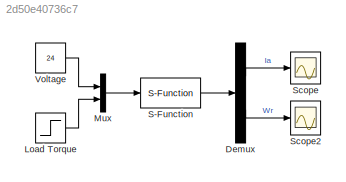
MODEL slx_2d50e40736c7
KIND model
CONFIG AbsTol = auto
CONFIG EnableMultiTasking = off
CONFIG FixedStep = auto
CONFIG MaxStep = auto
CONFIG MinStep = auto
CONFIG RelTol = 1e-3
CONFIG SampleTimeConstraint = Unconstrained
CONFIG SolverName = VariableStepAuto
CONFIG StartTime = 0.0
CONFIG StopTime = 30
BLOCK [Demux] Demux
  Outputs = 2
BLOCK [Step] Load Torque
  After = 0
  SampleTime = 0
  Time = 4
BLOCK [Mux] Mux
  DisplayOption = bar
  Inputs = 2
BLOCK [S-Function] S-Function
  EnableBusSupport = off
  FunctionName = DCMotor
  SFcnIsStateOwnerBlock = off
  SFunctionDeploymentMode = off
BLOCK [Scope] Scope
  Floating = off
  NumInputPorts = 1
  ScopeSpecificationString = Simulink.scopes.TimeScopeBlockCfg('CurrentConfiguration', extmgr.ConfigurationSet(extmgr.Configuration('Core','General UI',true,'FigureColor',[1 1 1]),extmgr.Configuration('Core','Source UI',true),extmgr.Configuration('Sources','WiredSimulink',true),extmgr.Configuration('Visuals','Time Domain',true,'SerializedDisplays',{struct('MinYLimReal','-0.26388','MaxYLimReal','2.37494','YLabelReal','','MinYL...<+1501ch>
BLOCK [Scope] Scope2
  Floating = off
  NumInputPorts = 1
  ScopeSpecificationString = Simulink.scopes.TimeScopeBlockCfg('CurrentConfiguration', extmgr.ConfigurationSet(extmgr.Configuration('Core','General UI',true,'FigureColor',[1 1 1]),extmgr.Configuration('Core','Source UI',true),extmgr.Configuration('Sources','WiredSimulink',true,'DataLoggingVariableName','ScopeData2'),extmgr.Configuration('Visuals','Time Domain',true,'SerializedDisplays',{struct('MinYLimReal','-216.4765','MaxYL...<+1558ch>
BLOCK [Constant] Voltage
  Value = 24
LINE Demux:1 -> Scope:1
LINE Demux:2 -> Scope2:1
LINE Load Torque:1 -> Mux:2
LINE Mux:1 -> S-Function:1
LINE S-Function:1 -> Demux:1
LINE Voltage:1 -> Mux:1
